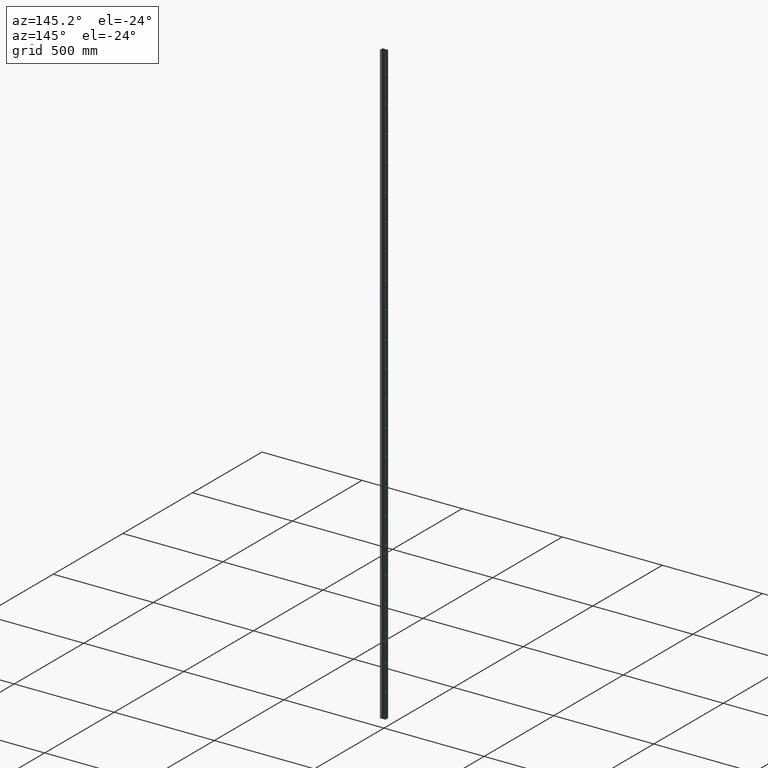
[diagram: clean part render]
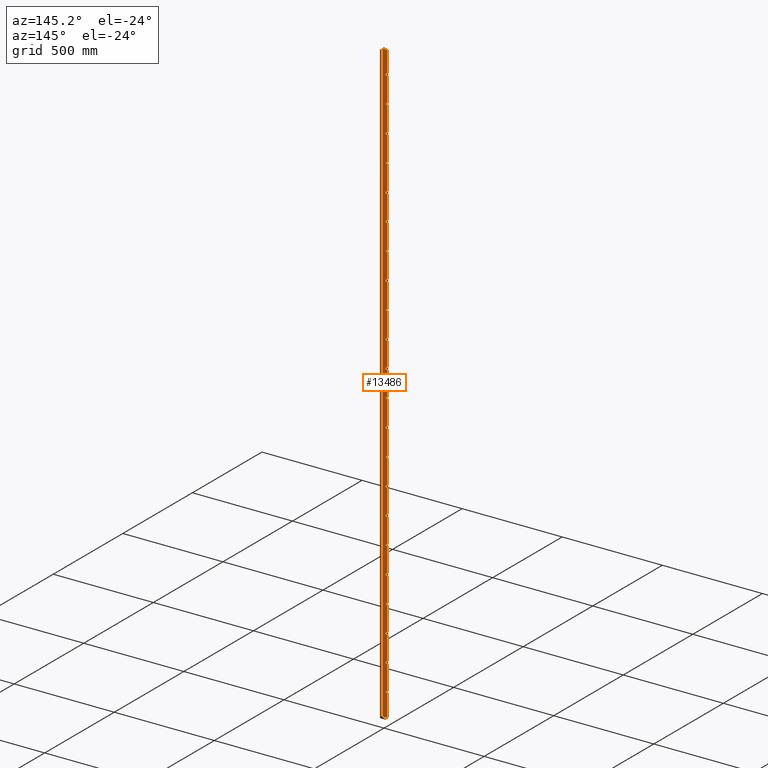
[diagram: same view with one face highlighted and labeled with its STEP entity id]
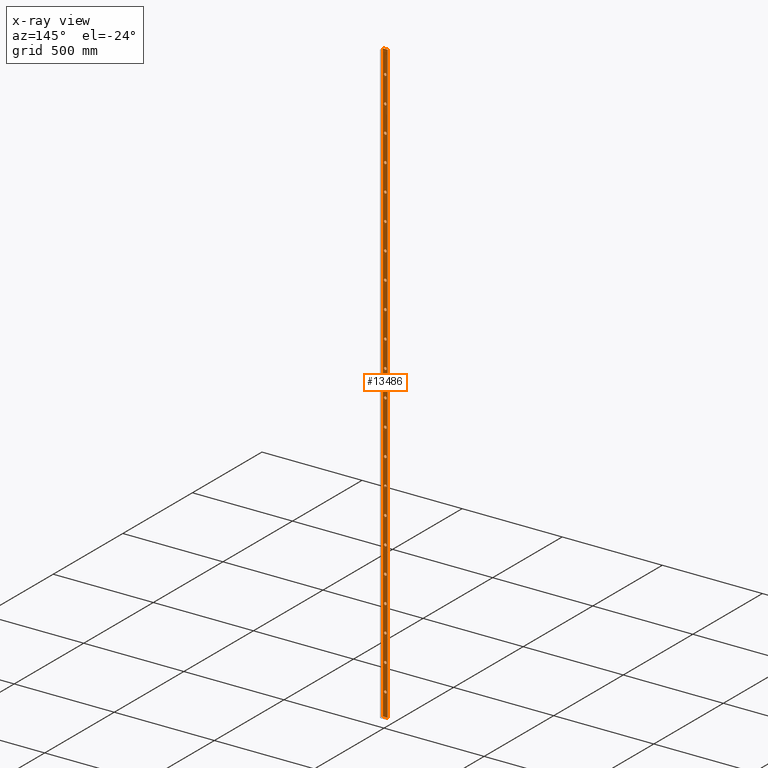
[diagram: x-ray of the same camera — body ghosted, the highlighted face saturated]
A machine part, auxiliary view. The second image highlights one B-rep face of the part: STEP entity #13486.
The next image is the same camera in x-ray: the body ghosted, the highlighted face saturated — about 0% of this face is hidden behind the body in this view.
In plain terms, the highlighted planar face has unit normal (0, -1, 0).
Its self-contained STEP definition (entity closure, byte-faithful):
#10 = CARTESIAN_POINT ( 'NONE',  ( 1.089342177719060737E-12, 10.00000000000000178, 198.0000000000008527 ) ) ;
#47 = CIRCLE ( 'NONE', #9380, 6.499999999999950262 ) ;
#193 = EDGE_CURVE ( 'NONE', #10007, #10007, #3918, .T. ) ;
#253 = DIRECTION ( 'NONE',  ( 0.000000000000000000, 0.000000000000000000, 1.000000000000000000 ) ) ;
#304 = DIRECTION ( 'NONE',  ( 0.000000000000000000, 0.000000000000000000, 1.000000000000000000 ) ) ;
#352 = CIRCLE ( 'NONE', #7877, 6.499999999999950262 ) ;
#360 = CARTESIAN_POINT ( 'NONE',  ( -4.441164263008458459E-12, 10.00000000000000178, -1385.999999999997726 ) ) ;
#426 = VERTEX_POINT ( 'NONE', #11912 ) ;
#440 = VERTEX_POINT ( 'NONE', #3621 ) ;
#452 = VERTEX_POINT ( 'NONE', #3269 ) ;
#516 = ORIENTED_EDGE ( 'NONE', *, *, #193, .F. ) ;
#574 = CARTESIAN_POINT ( 'NONE',  ( -1.215035505917405207E-12, 10.00000000000000178, -461.9999999999986358 ) ) ;
#702 = FACE_BOUND ( 'NONE', #16190, .T. ) ;
#727 = EDGE_LOOP ( 'NONE', ( #6824 ) ) ;
#798 = DIRECTION ( 'NONE',  ( 0.000000000000000000, 0.000000000000000000, 1.000000000000000000 ) ) ;
#842 = CARTESIAN_POINT ( 'NONE',  ( 2.932844324628233937E-12, 10.00000000000000178, 726.0000000000004547 ) ) ;
#1117 = FACE_BOUND ( 'NONE', #4195, .T. ) ;
#1189 = DIRECTION ( 'NONE',  ( 0.000000000000000000, 0.000000000000000000, 1.000000000000000000 ) ) ;
#1194 = EDGE_LOOP ( 'NONE', ( #11464 ) ) ;
#1234 = EDGE_CURVE ( 'NONE', #3489, #3489, #12898, .T. ) ;
#1265 = DIRECTION ( 'NONE',  ( 0.000000000000000000, 1.000000000000000000, 0.000000000000000000 ) ) ;
#1266 = DIRECTION ( 'NONE',  ( 0.000000000000000000, 0.000000000000000000, 1.000000000000000000 ) ) ;
#1273 = DIRECTION ( 'NONE',  ( 0.000000000000000000, 0.000000000000000000, 1.000000000000000000 ) ) ;
#1348 = DIRECTION ( 'NONE',  ( 0.000000000000000000, 0.000000000000000000, 1.000000000000000000 ) ) ;
#1351 = EDGE_CURVE ( 'NONE', #14023, #452, #11418, .T. ) ;
#1352 = VERTEX_POINT ( 'NONE', #15460 ) ;
#1462 = CARTESIAN_POINT ( 'NONE',  ( -3.519413189553870950E-12, 10.00000000000000178, -1115.499999999998408 ) ) ;
#1855 = DIRECTION ( 'NONE',  ( 0.000000000000000000, 1.000000000000000000, 0.000000000000000000 ) ) ;
#2066 = EDGE_CURVE ( 'NONE', #11838, #11838, #2669, .T. ) ;
#2243 = AXIS2_PLACEMENT_3D ( 'NONE', #8921, #15485, #12817 ) ;
#2292 = ORIENTED_EDGE ( 'NONE', *, *, #2419, .F. ) ;
#2339 = FACE_BOUND ( 'NONE', #1194, .T. ) ;
#2378 = CARTESIAN_POINT ( 'NONE',  ( 4.315470934810113786E-12, 10.00000000000000178, 1128.500000000000000 ) ) ;
#2416 = AXIS2_PLACEMENT_3D ( 'NONE', #3559, #13949, #3617 ) ;
#2419 = EDGE_CURVE ( 'NONE', #440, #440, #2894, .T. ) ;
#2450 = DIRECTION ( 'NONE',  ( -1.000000000000000000, -0.000000000000000000, -0.000000000000000000 ) ) ;
#2507 = AXIS2_PLACEMENT_3D ( 'NONE', #360, #2819, #5576 ) ;
#2539 = FACE_BOUND ( 'NONE', #5545, .T. ) ;
#2576 = DIRECTION ( 'NONE',  ( 0.000000000000000000, -0.000000000000000000, -1.000000000000000000 ) ) ;
#2666 = VERTEX_POINT ( 'NONE', #14682 ) ;
#2669 = CIRCLE ( 'NONE', #11409, 6.499999999999950262 ) ;
#2757 = VECTOR ( 'NONE', #14969, 1000.000000000000000 ) ;
#2819 = DIRECTION ( 'NONE',  ( 0.000000000000000000, 1.000000000000000000, 0.000000000000000000 ) ) ;
#2885 = CARTESIAN_POINT ( 'NONE',  ( 2.011093251173647640E-12, 10.00000000000000178, 462.0000000000006253 ) ) ;
#2893 = VERTEX_POINT ( 'NONE', #9315 ) ;
#2894 = CIRCLE ( 'NONE', #16920, 6.499999999999950262 ) ;
#2934 = DIRECTION ( 'NONE',  ( 0.000000000000000000, 1.000000000000000000, 0.000000000000000000 ) ) ;
#2954 = FACE_BOUND ( 'NONE', #8299, .T. ) ;
#3018 = EDGE_LOOP ( 'NONE', ( #7022 ) ) ;
#3061 = CARTESIAN_POINT ( 'NONE',  ( -12.00000000000001421, 10.00000000000000178, 1500.000000000000000 ) ) ;
#3269 = CARTESIAN_POINT ( 'NONE',  ( -12.00000000000001421, 10.00000000000000000, -1500.000000000000000 ) ) ;
#3315 = CIRCLE ( 'NONE', #14673, 6.500000000000061284 ) ;
#3348 = FACE_BOUND ( 'NONE', #6382, .T. ) ;
#3390 = EDGE_CURVE ( 'NONE', #4097, #4097, #10178, .T. ) ;
#3487 = VERTEX_POINT ( 'NONE', #6599 ) ;
#3489 = VERTEX_POINT ( 'NONE', #12858 ) ;
#3555 = FACE_OUTER_BOUND ( 'NONE', #15895, .T. ) ;
#3559 = CARTESIAN_POINT ( 'NONE',  ( 1.550217714446354289E-12, 10.00000000000000178, 330.0000000000007390 ) ) ;
#3617 = DIRECTION ( 'NONE',  ( 0.000000000000000000, 0.000000000000000000, 1.000000000000000000 ) ) ;
#3621 = CARTESIAN_POINT ( 'NONE',  ( 2.471968787900940385E-12, 10.00000000000000178, 600.5000000000004547 ) ) ;
#3664 = CARTESIAN_POINT ( 'NONE',  ( -1.675911042644697952E-12, 10.00000000000000178, -587.4999999999986358 ) ) ;
#3679 = VERTEX_POINT ( 'NONE', #1462 ) ;
#3726 = CARTESIAN_POINT ( 'NONE',  ( -7.541599691901116551E-13, 10.00000000000000178, -323.4999999999988063 ) ) ;
#3727 = ORIENTED_EDGE ( 'NONE', *, *, #7966, .F. ) ;
#3774 = ORIENTED_EDGE ( 'NONE', *, *, #1234, .F. ) ;
#3918 = CIRCLE ( 'NONE', #2243, 6.499999999999950262 ) ;
#3939 = DIRECTION ( 'NONE',  ( 0.000000000000000000, 0.000000000000000000, 1.000000000000000000 ) ) ;
#3969 = CARTESIAN_POINT ( 'NONE',  ( -3.980288726281163695E-12, 10.00000000000000178, -1253.999999999997954 ) ) ;
#4097 = VERTEX_POINT ( 'NONE', #2378 ) ;
#4184 = CARTESIAN_POINT ( 'NONE',  ( 1.675911042644745915E-13, 10.00000000000000178, -65.99999999999894840 ) ) ;
#4195 = EDGE_LOOP ( 'NONE', ( #7823 ) ) ;
#4206 = EDGE_LOOP ( 'NONE', ( #8786 ) ) ;
#4274 = CARTESIAN_POINT ( 'NONE',  ( -2.136786579371991504E-12, 10.00000000000000178, -719.4999999999985221 ) ) ;
#4472 = AXIS2_PLACEMENT_3D ( 'NONE', #15466, #13076, #3939 ) ;
#4553 = FACE_BOUND ( 'NONE', #6335, .T. ) ;
#4770 = FACE_BOUND ( 'NONE', #13177, .T. ) ;
#4952 = VECTOR ( 'NONE', #5561, 1000.000000000000000 ) ;
#4955 = FACE_BOUND ( 'NONE', #14649, .T. ) ;
#5027 = CARTESIAN_POINT ( 'NONE',  ( -1.215035505917405207E-12, 10.00000000000000178, -455.4999999999986926 ) ) ;
#5080 = VERTEX_POINT ( 'NONE', #11973 ) ;
#5125 = DIRECTION ( 'NONE',  ( 0.000000000000000000, 1.000000000000000000, 0.000000000000000000 ) ) ;
#5273 = DIRECTION ( 'NONE',  ( 0.000000000000000000, 1.000000000000000000, 0.000000000000000000 ) ) ;
#5341 = AXIS2_PLACEMENT_3D ( 'NONE', #3969, #7910, #6927 ) ;
#5358 = EDGE_LOOP ( 'NONE', ( #14376 ) ) ;
#5451 = AXIS2_PLACEMENT_3D ( 'NONE', #2885, #15937, #253 ) ;
#5516 = VERTEX_POINT ( 'NONE', #8106 ) ;
#5545 = EDGE_LOOP ( 'NONE', ( #516 ) ) ;
#5561 = DIRECTION ( 'NONE',  ( -0.000000000000000000, -0.000000000000000000, -1.000000000000000000 ) ) ;
#5576 = DIRECTION ( 'NONE',  ( 0.000000000000000000, 0.000000000000000000, 1.000000000000000000 ) ) ;
#5608 = ORIENTED_EDGE ( 'NONE', *, *, #6149, .F. ) ;
#5683 = EDGE_CURVE ( 'NONE', #13095, #13095, #14851, .T. ) ;
#5727 = DIRECTION ( 'NONE',  ( 0.000000000000000000, 0.000000000000000000, 1.000000000000000000 ) ) ;
#5764 = AXIS2_PLACEMENT_3D ( 'NONE', #6441, #1265, #13191 ) ;
#5785 = FACE_BOUND ( 'NONE', #6997, .T. ) ;
#5911 = VERTEX_POINT ( 'NONE', #9474 ) ;
#5968 = LINE ( 'NONE', #3061, #2757 ) ;
#6106 = VERTEX_POINT ( 'NONE', #8147 ) ;
#6128 = VECTOR ( 'NONE', #2450, 1000.000000000000000 ) ;
#6149 = EDGE_CURVE ( 'NONE', #7136, #7136, #7665, .T. ) ;
#6156 = CARTESIAN_POINT ( 'NONE',  ( 5.237222008264700083E-12, 10.00000000000000178, 1386.000000000000000 ) ) ;
#6170 = CARTESIAN_POINT ( 'NONE',  ( 2.932844324628233937E-12, 10.00000000000000178, 732.5000000000003411 ) ) ;
#6188 = CIRCLE ( 'NONE', #14007, 6.499999999999950262 ) ;
#6256 = DIRECTION ( 'NONE',  ( 0.000000000000000000, 0.000000000000000000, 1.000000000000000000 ) ) ;
#6322 = EDGE_CURVE ( 'NONE', #16151, #16151, #352, .T. ) ;
#6335 = EDGE_LOOP ( 'NONE', ( #2292 ) ) ;
#6382 = EDGE_LOOP ( 'NONE', ( #10924 ) ) ;
#6407 = DIRECTION ( 'NONE',  ( 0.000000000000000000, 0.000000000000000000, 1.000000000000000000 ) ) ;
#6441 = CARTESIAN_POINT ( 'NONE',  ( -2.932844324628189104E-13, 10.00000000000000178, -197.9999999999988347 ) ) ;
#6599 = CARTESIAN_POINT ( 'NONE',  ( -12.00000000000001421, 10.00000000000000000, 1500.000000000000000 ) ) ;
#6604 = DIRECTION ( 'NONE',  ( 0.000000000000000000, 1.000000000000000000, 0.000000000000000000 ) ) ;
#6608 = CIRCLE ( 'NONE', #12113, 6.499999999999970690 ) ;
#6711 = EDGE_LOOP ( 'NONE', ( #12862 ) ) ;
#6824 = ORIENTED_EDGE ( 'NONE', *, *, #13481, .F. ) ;
#6927 = DIRECTION ( 'NONE',  ( 0.000000000000000000, 0.000000000000000000, 1.000000000000000000 ) ) ;
#6943 = VERTEX_POINT ( 'NONE', #4274 ) ;
#6997 = EDGE_LOOP ( 'NONE', ( #5608 ) ) ;
#7022 = ORIENTED_EDGE ( 'NONE', *, *, #15864, .F. ) ;
#7136 = VERTEX_POINT ( 'NONE', #6170 ) ;
#7281 = DIRECTION ( 'NONE',  ( 0.000000000000000000, 1.000000000000000000, 0.000000000000000000 ) ) ;
#7421 = AXIS2_PLACEMENT_3D ( 'NONE', #16792, #5125, #1189 ) ;
#7533 = DIRECTION ( 'NONE',  ( 0.000000000000000000, 1.000000000000000000, 0.000000000000000000 ) ) ;
#7542 = CARTESIAN_POINT ( 'NONE',  ( 6.284666409917680934E-13, 10.00000000000000178, 72.50000000000090949 ) ) ;
#7607 = AXIS2_PLACEMENT_3D ( 'NONE', #8833, #10138, #1266 ) ;
#7631 = CARTESIAN_POINT ( 'NONE',  ( -12.00000000000001421, 10.00000000000000178, -1500.000000000000000 ) ) ;
#7665 = CIRCLE ( 'NONE', #10574, 6.499999999999950262 ) ;
#7712 = AXIS2_PLACEMENT_3D ( 'NONE', #13446, #1855, #9710 ) ;
#7790 = CARTESIAN_POINT ( 'NONE',  ( 2.471968787900940385E-12, 10.00000000000000178, 594.0000000000005684 ) ) ;
#7819 = LINE ( 'NONE', #13005, #4952 ) ;
#7823 = ORIENTED_EDGE ( 'NONE', *, *, #9053, .F. ) ;
#7839 = AXIS2_PLACEMENT_3D ( 'NONE', #8591, #7281, #798 ) ;
#7877 = AXIS2_PLACEMENT_3D ( 'NONE', #6156, #7533, #15529 ) ;
#7910 = DIRECTION ( 'NONE',  ( 0.000000000000000000, 1.000000000000000000, 0.000000000000000000 ) ) ;
#7966 = EDGE_CURVE ( 'NONE', #10297, #10297, #6188, .T. ) ;
#8070 = CARTESIAN_POINT ( 'NONE',  ( 11.99999999999998934, 10.00000000000000178, -1500.000000000000000 ) ) ;
#8106 = CARTESIAN_POINT ( 'NONE',  ( -2.597662116099284249E-12, 10.00000000000000178, -851.4999999999981810 ) ) ;
#8122 = EDGE_CURVE ( 'NONE', #16216, #16216, #15203, .T. ) ;
#8147 = CARTESIAN_POINT ( 'NONE',  ( 2.011093251173647640E-12, 10.00000000000000178, 468.5000000000005684 ) ) ;
#8202 = LINE ( 'NONE', #15988, #8608 ) ;
#8234 = ORIENTED_EDGE ( 'NONE', *, *, #8122, .F. ) ;
#8299 = EDGE_LOOP ( 'NONE', ( #15145 ) ) ;
#8580 = DIRECTION ( 'NONE',  ( 0.000000000000000000, 1.000000000000000000, 0.000000000000000000 ) ) ;
#8591 = CARTESIAN_POINT ( 'NONE',  ( 4.315470934810113786E-12, 10.00000000000000178, 1122.000000000000000 ) ) ;
#8608 = VECTOR ( 'NONE', #15761, 1000.000000000000000 ) ;
#8671 = EDGE_CURVE ( 'NONE', #1352, #14023, #7819, .T. ) ;
#8673 = EDGE_LOOP ( 'NONE', ( #13342 ) ) ;
#8786 = ORIENTED_EDGE ( 'NONE', *, *, #14986, .F. ) ;
#8815 = CIRCLE ( 'NONE', #4472, 6.499999999999950262 ) ;
#8833 = CARTESIAN_POINT ( 'NONE',  ( 4.776346471537406127E-12, 10.00000000000000178, 1254.000000000000000 ) ) ;
#8921 = CARTESIAN_POINT ( 'NONE',  ( -1.675911042644697952E-12, 10.00000000000000178, -593.9999999999985221 ) ) ;
#8974 = EDGE_CURVE ( 'NONE', #1352, #3487, #5968, .T. ) ;
#8979 = VERTEX_POINT ( 'NONE', #15828 ) ;
#8992 = EDGE_LOOP ( 'NONE', ( #9594 ) ) ;
#9050 = FACE_BOUND ( 'NONE', #4206, .T. ) ;
#9053 = EDGE_CURVE ( 'NONE', #15342, #15342, #14590, .T. ) ;
#9180 = DIRECTION ( 'NONE',  ( 0.000000000000000000, -1.000000000000000000, 0.000000000000000000 ) ) ;
#9184 = AXIS2_PLACEMENT_3D ( 'NONE', #10, #2934, #304 ) ;
#9191 = DIRECTION ( 'NONE',  ( 0.000000000000000000, 1.000000000000000000, 0.000000000000000000 ) ) ;
#9235 = PLANE ( 'NONE',  #11887 ) ;
#9248 = CARTESIAN_POINT ( 'NONE',  ( -2.932844324628189104E-13, 10.00000000000000178, -191.4999999999988916 ) ) ;
#9311 = AXIS2_PLACEMENT_3D ( 'NONE', #574, #14930, #5727 ) ;
#9315 = CARTESIAN_POINT ( 'NONE',  ( 1.550217714446354289E-12, 10.00000000000000178, 336.5000000000006821 ) ) ;
#9380 = AXIS2_PLACEMENT_3D ( 'NONE', #15654, #9191, #1348 ) ;
#9474 = CARTESIAN_POINT ( 'NONE',  ( -3.058537652826578205E-12, 10.00000000000000178, -983.4999999999982947 ) ) ;
#9594 = ORIENTED_EDGE ( 'NONE', *, *, #2066, .F. ) ;
#9710 = DIRECTION ( 'NONE',  ( 0.000000000000000000, 0.000000000000000000, 1.000000000000000000 ) ) ;
#9802 = EDGE_LOOP ( 'NONE', ( #15954 ) ) ;
#10007 = VERTEX_POINT ( 'NONE', #3664 ) ;
#10138 = DIRECTION ( 'NONE',  ( 0.000000000000000000, 1.000000000000000000, 0.000000000000000000 ) ) ;
#10178 = CIRCLE ( 'NONE', #7839, 6.499999999999950262 ) ;
#10200 = ORIENTED_EDGE ( 'NONE', *, *, #15296, .F. ) ;
#10297 = VERTEX_POINT ( 'NONE', #3726 ) ;
#10345 = CARTESIAN_POINT ( 'NONE',  ( 3.854595398082820638E-12, 10.00000000000000178, 990.0000000000002274 ) ) ;
#10422 = CIRCLE ( 'NONE', #2416, 6.499999999999950262 ) ;
#10463 = DIRECTION ( 'NONE',  ( 0.000000000000000000, 0.000000000000000000, 1.000000000000000000 ) ) ;
#10472 = CARTESIAN_POINT ( 'NONE',  ( -12.00000000000001421, 10.00000000000000178, 1500.000000000000000 ) ) ;
#10574 = AXIS2_PLACEMENT_3D ( 'NONE', #842, #8580, #15160 ) ;
#10630 = CIRCLE ( 'NONE', #15497, 6.499999999999950262 ) ;
#10729 = EDGE_CURVE ( 'NONE', #3679, #3679, #10630, .T. ) ;
#10924 = ORIENTED_EDGE ( 'NONE', *, *, #10729, .F. ) ;
#11069 = FACE_BOUND ( 'NONE', #14147, .T. ) ;
#11229 = EDGE_CURVE ( 'NONE', #5911, #5911, #47, .T. ) ;
#11403 = CARTESIAN_POINT ( 'NONE',  ( -4.441164263008458459E-12, 10.00000000000000178, -1379.499999999997726 ) ) ;
#11409 = AXIS2_PLACEMENT_3D ( 'NONE', #15582, #11739, #1273 ) ;
#11418 = LINE ( 'NONE', #7631, #6128 ) ;
#11434 = ORIENTED_EDGE ( 'NONE', *, *, #8974, .F. ) ;
#11464 = ORIENTED_EDGE ( 'NONE', *, *, #15740, .F. ) ;
#11647 = DIRECTION ( 'NONE',  ( 0.000000000000000000, 0.000000000000000000, 1.000000000000000000 ) ) ;
#11697 = ORIENTED_EDGE ( 'NONE', *, *, #6322, .F. ) ;
#11702 = EDGE_LOOP ( 'NONE', ( #3727 ) ) ;
#11739 = DIRECTION ( 'NONE',  ( 0.000000000000000000, 1.000000000000000000, 0.000000000000000000 ) ) ;
#11838 = VERTEX_POINT ( 'NONE', #14180 ) ;
#11887 = AXIS2_PLACEMENT_3D ( 'NONE', #10472, #9180, #2576 ) ;
#11912 = CARTESIAN_POINT ( 'NONE',  ( 1.089342177719060737E-12, 10.00000000000000178, 204.5000000000008242 ) ) ;
#11973 = CARTESIAN_POINT ( 'NONE',  ( -3.980288726281163695E-12, 10.00000000000000178, -1247.499999999997954 ) ) ;
#12113 = AXIS2_PLACEMENT_3D ( 'NONE', #4184, #13219, #16002 ) ;
#12463 = ORIENTED_EDGE ( 'NONE', *, *, #1351, .T. ) ;
#12532 = FACE_BOUND ( 'NONE', #5358, .T. ) ;
#12650 = DIRECTION ( 'NONE',  ( 0.000000000000000000, 1.000000000000000000, 0.000000000000000000 ) ) ;
#12817 = DIRECTION ( 'NONE',  ( 0.000000000000000000, 0.000000000000000000, 1.000000000000000000 ) ) ;
#12858 = CARTESIAN_POINT ( 'NONE',  ( 4.776346471537406127E-12, 10.00000000000000178, 1260.500000000000000 ) ) ;
#12862 = ORIENTED_EDGE ( 'NONE', *, *, #5683, .F. ) ;
#12898 = CIRCLE ( 'NONE', #7607, 6.499999999999950262 ) ;
#12907 = CIRCLE ( 'NONE', #5341, 6.499999999999950262 ) ;
#12946 = FACE_BOUND ( 'NONE', #15179, .T. ) ;
#13005 = CARTESIAN_POINT ( 'NONE',  ( 11.99999999999998934, 10.00000000000000178, 1500.000000000000000 ) ) ;
#13076 = DIRECTION ( 'NONE',  ( 0.000000000000000000, 1.000000000000000000, 0.000000000000000000 ) ) ;
#13095 = VERTEX_POINT ( 'NONE', #11403 ) ;
#13151 = CIRCLE ( 'NONE', #5451, 6.499999999999950262 ) ;
#13177 = EDGE_LOOP ( 'NONE', ( #11697 ) ) ;
#13191 = DIRECTION ( 'NONE',  ( 0.000000000000000000, 0.000000000000000000, 1.000000000000000000 ) ) ;
#13219 = DIRECTION ( 'NONE',  ( 0.000000000000000000, 1.000000000000000000, 0.000000000000000000 ) ) ;
#13342 = ORIENTED_EDGE ( 'NONE', *, *, #16165, .F. ) ;
#13371 = FACE_BOUND ( 'NONE', #9802, .T. ) ;
#13396 = ORIENTED_EDGE ( 'NONE', *, *, #15527, .F. ) ;
#13446 = CARTESIAN_POINT ( 'NONE',  ( 6.284666409917680934E-13, 10.00000000000000178, 66.00000000000095213 ) ) ;
#13481 = EDGE_CURVE ( 'NONE', #14301, #14301, #14806, .T. ) ;
#13486 = ADVANCED_FACE ( 'NONE', ( #4770, #15414, #12532, #702, #15827, #5785, #4553, #2954, #2339, #14990, #1117, #4955, #13978, #13760, #12946, #2539, #9050, #16820, #13371, #3348, #11069, #14593, #3555 ), #9235, .F. ) ;
#13590 = ORIENTED_EDGE ( 'NONE', *, *, #15198, .F. ) ;
#13760 = FACE_BOUND ( 'NONE', #11702, .T. ) ;
#13949 = DIRECTION ( 'NONE',  ( 0.000000000000000000, 1.000000000000000000, 0.000000000000000000 ) ) ;
#13978 = FACE_BOUND ( 'NONE', #727, .T. ) ;
#14007 = AXIS2_PLACEMENT_3D ( 'NONE', #15246, #12650, #6256 ) ;
#14023 = VERTEX_POINT ( 'NONE', #8070 ) ;
#14057 = EDGE_CURVE ( 'NONE', #8979, #8979, #6608, .T. ) ;
#14117 = EDGE_CURVE ( 'NONE', #6106, #6106, #13151, .T. ) ;
#14126 = DIRECTION ( 'NONE',  ( 0.000000000000000000, 1.000000000000000000, 0.000000000000000000 ) ) ;
#14147 = EDGE_LOOP ( 'NONE', ( #10200 ) ) ;
#14180 = CARTESIAN_POINT ( 'NONE',  ( 3.393719861355527085E-12, 10.00000000000000178, 864.5000000000002274 ) ) ;
#14301 = VERTEX_POINT ( 'NONE', #9248 ) ;
#14376 = ORIENTED_EDGE ( 'NONE', *, *, #3390, .F. ) ;
#14475 = ORIENTED_EDGE ( 'NONE', *, *, #14057, .F. ) ;
#14590 = CIRCLE ( 'NONE', #7712, 6.499999999999964473 ) ;
#14593 = FACE_BOUND ( 'NONE', #6711, .T. ) ;
#14649 = EDGE_LOOP ( 'NONE', ( #14475 ) ) ;
#14673 = AXIS2_PLACEMENT_3D ( 'NONE', #10345, #6604, #11647 ) ;
#14682 = CARTESIAN_POINT ( 'NONE',  ( 3.854595398082820638E-12, 10.00000000000000178, 996.5000000000002274 ) ) ;
#14754 = EDGE_LOOP ( 'NONE', ( #3774 ) ) ;
#14806 = CIRCLE ( 'NONE', #5764, 6.499999999999950262 ) ;
#14851 = CIRCLE ( 'NONE', #2507, 6.499999999999950262 ) ;
#14930 = DIRECTION ( 'NONE',  ( 0.000000000000000000, 1.000000000000000000, 0.000000000000000000 ) ) ;
#14969 = DIRECTION ( 'NONE',  ( -1.000000000000000000, -0.000000000000000000, -0.000000000000000000 ) ) ;
#14986 = EDGE_CURVE ( 'NONE', #6943, #6943, #8815, .T. ) ;
#14990 = FACE_BOUND ( 'NONE', #8673, .T. ) ;
#15132 = CIRCLE ( 'NONE', #7421, 6.499999999999950262 ) ;
#15145 = ORIENTED_EDGE ( 'NONE', *, *, #14117, .F. ) ;
#15160 = DIRECTION ( 'NONE',  ( 0.000000000000000000, 0.000000000000000000, 1.000000000000000000 ) ) ;
#15179 = EDGE_LOOP ( 'NONE', ( #8234 ) ) ;
#15198 = EDGE_CURVE ( 'NONE', #3487, #452, #8202, .T. ) ;
#15203 = CIRCLE ( 'NONE', #9311, 6.499999999999950262 ) ;
#15246 = CARTESIAN_POINT ( 'NONE',  ( -7.541599691901116551E-13, 10.00000000000000178, -329.9999999999987494 ) ) ;
#15296 = EDGE_CURVE ( 'NONE', #5080, #5080, #12907, .T. ) ;
#15342 = VERTEX_POINT ( 'NONE', #7542 ) ;
#15414 = FACE_BOUND ( 'NONE', #14754, .T. ) ;
#15460 = CARTESIAN_POINT ( 'NONE',  ( 11.99999999999998934, 10.00000000000000178, 1500.000000000000000 ) ) ;
#15466 = CARTESIAN_POINT ( 'NONE',  ( -2.136786579371991504E-12, 10.00000000000000178, -725.9999999999984084 ) ) ;
#15485 = DIRECTION ( 'NONE',  ( 0.000000000000000000, 1.000000000000000000, 0.000000000000000000 ) ) ;
#15497 = AXIS2_PLACEMENT_3D ( 'NONE', #15609, #14126, #6407 ) ;
#15527 = EDGE_CURVE ( 'NONE', #2666, #2666, #3315, .T. ) ;
#15529 = DIRECTION ( 'NONE',  ( 0.000000000000000000, 0.000000000000000000, 1.000000000000000000 ) ) ;
#15582 = CARTESIAN_POINT ( 'NONE',  ( 3.393719861355527085E-12, 10.00000000000000178, 858.0000000000003411 ) ) ;
#15609 = CARTESIAN_POINT ( 'NONE',  ( -3.519413189553870950E-12, 10.00000000000000178, -1121.999999999998408 ) ) ;
#15654 = CARTESIAN_POINT ( 'NONE',  ( -3.058537652826578205E-12, 10.00000000000000178, -989.9999999999981810 ) ) ;
#15740 = EDGE_CURVE ( 'NONE', #2893, #2893, #10422, .T. ) ;
#15761 = DIRECTION ( 'NONE',  ( -0.000000000000000000, -0.000000000000000000, -1.000000000000000000 ) ) ;
#15827 = FACE_BOUND ( 'NONE', #8992, .T. ) ;
#15828 = CARTESIAN_POINT ( 'NONE',  ( 1.675911042644745915E-13, 10.00000000000000178, -59.49999999999897682 ) ) ;
#15864 = EDGE_CURVE ( 'NONE', #5516, #5516, #15132, .T. ) ;
#15895 = EDGE_LOOP ( 'NONE', ( #12463, #13590, #11434, #16478 ) ) ;
#15937 = DIRECTION ( 'NONE',  ( 0.000000000000000000, 1.000000000000000000, 0.000000000000000000 ) ) ;
#15954 = ORIENTED_EDGE ( 'NONE', *, *, #11229, .F. ) ;
#15960 = CIRCLE ( 'NONE', #9184, 6.499999999999977796 ) ;
#15988 = CARTESIAN_POINT ( 'NONE',  ( -12.00000000000001421, 10.00000000000000000, 1500.000000000000000 ) ) ;
#16002 = DIRECTION ( 'NONE',  ( 0.000000000000000000, 0.000000000000000000, 1.000000000000000000 ) ) ;
#16151 = VERTEX_POINT ( 'NONE', #16797 ) ;
#16165 = EDGE_CURVE ( 'NONE', #426, #426, #15960, .T. ) ;
#16190 = EDGE_LOOP ( 'NONE', ( #13396 ) ) ;
#16216 = VERTEX_POINT ( 'NONE', #5027 ) ;
#16478 = ORIENTED_EDGE ( 'NONE', *, *, #8671, .T. ) ;
#16792 = CARTESIAN_POINT ( 'NONE',  ( -2.597662116099284249E-12, 10.00000000000000178, -857.9999999999980673 ) ) ;
#16797 = CARTESIAN_POINT ( 'NONE',  ( 5.237222008264700083E-12, 10.00000000000000178, 1392.499999999999773 ) ) ;
#16820 = FACE_BOUND ( 'NONE', #3018, .T. ) ;
#16920 = AXIS2_PLACEMENT_3D ( 'NONE', #7790, #5273, #10463 ) ;